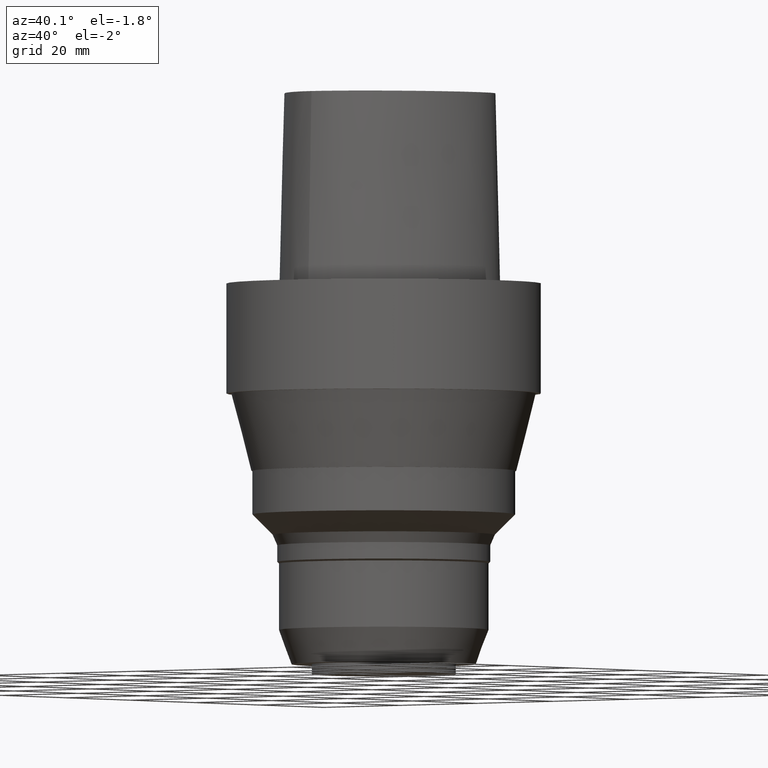
[diagram: clean part render]
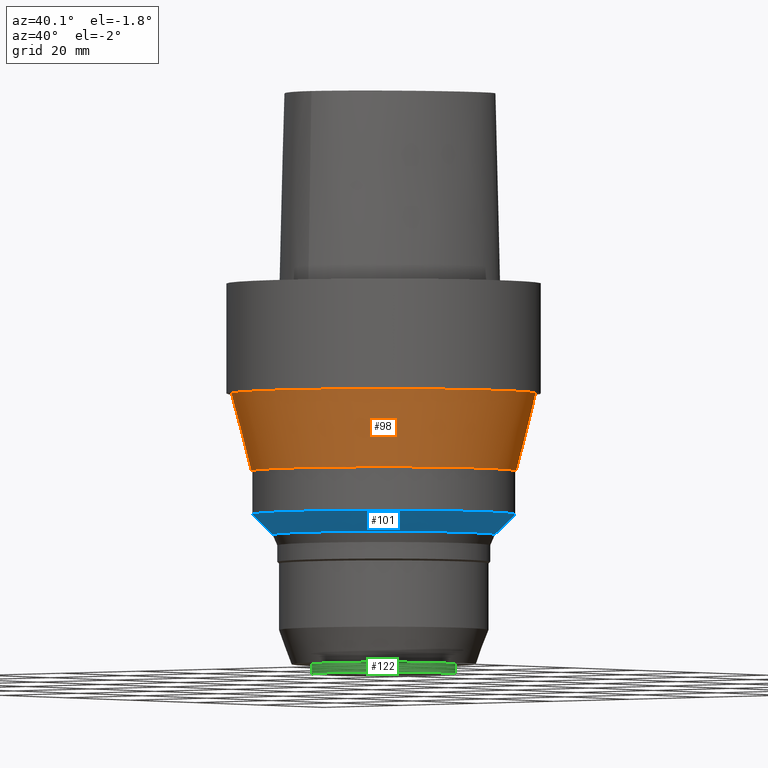
[diagram: same view with three faces highlighted in distinct colors, each labeled with its STEP entity id]
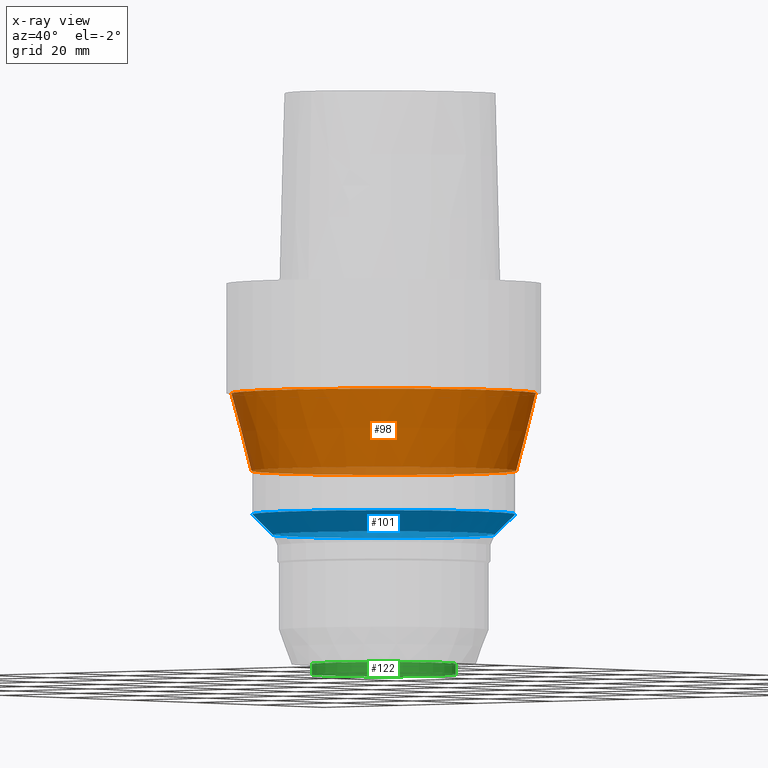
[diagram: x-ray of the same camera — body ghosted, the three highlighted faces saturated]
A machine part, auxiliary view with three faces highlighted in distinct colors.
The next image is the same camera in x-ray (body ghosted, the three faces saturated) — at least one of them is partly hidden behind the body in this view.
Their STEP definitions:

[orange] entity #98 — the highlighted conical surface has half-angle 14.47 deg.
#98=ADVANCED_FACE('Unnamed[1]',(#235,#236),#237,.T.);
#119=EDGE_CURVE('Unnamed[1]',#270,#270,#271,.T.);
#154=EDGE_CURVE('Unnamed[1]',#319,#319,#320,.T.);
#235=FACE_BOUND('',#514,.T.);
#236=FACE_BOUND('',#515,.T.);
#237=CONICAL_SURFACE('',#516,28.5000000000026,0.252554275777704);
#270=VERTEX_POINT('',#557);
#271=CIRCLE('',#558,30.4999999999999);
#319=VERTEX_POINT('',#704);
#320=CIRCLE('',#705,26.5000000000054);
#514=EDGE_LOOP('',(#795));
#515=EDGE_LOOP('',(#796));
#516=AXIS2_PLACEMENT_3D('',#797,#798,#799);
#557=CARTESIAN_POINT('',(1.34711147906212E-015,30.4999999999999,-22.0000000000006));
#558=AXIS2_PLACEMENT_3D('',#838,#839,#840);
#704=CARTESIAN_POINT('',(2.29621274840141E-015,26.5000000000054,-37.5000000000021));
#705=AXIS2_PLACEMENT_3D('',#890,#891,#892);
#795=ORIENTED_EDGE('',*,*,#154,.F.);
#796=ORIENTED_EDGE('',*,*,#119,.T.);
#797=CARTESIAN_POINT('',(1.82166211373177E-015,3.64332422746354E-015,-29.7500000000013));
#798=DIRECTION('',(-6.12323399573677E-017,-1.22464679914735E-016,1.0));
#799=DIRECTION('',(-1.23259516440783E-032,1.0,1.22464679914735E-016));
#838=CARTESIAN_POINT('',(1.34711147906212E-015,2.69422295812425E-015,-22.0000000000006));
#839=DIRECTION('',(6.12323399573677E-017,1.22464679914735E-016,-1.0));
#840=DIRECTION('',(-1.23259516440783E-032,1.0,1.22464679914735E-016));
#890=CARTESIAN_POINT('',(2.29621274840141E-015,4.59242549680283E-015,-37.5000000000021));
#891=DIRECTION('',(6.12323399573677E-017,1.22464679914735E-016,-1.0));
#892=DIRECTION('',(-1.23259516440783E-032,1.0,1.22464679914735E-016));

[blue] entity #101 — the highlighted conical surface has half-angle 45 deg.
#66=EDGE_CURVE('Unnamed[1]',#186,#186,#187,.T.);
#101=ADVANCED_FACE('Unnamed[1]',(#240,#241),#242,.T.);
#124=EDGE_CURVE('Unnamed[1]',#278,#278,#279,.T.);
#186=VERTEX_POINT('',#349);
#187=CIRCLE('',#350,22.2286796564404);
#240=FACE_BOUND('',#520,.T.);
#241=FACE_BOUND('',#521,.T.);
#242=CONICAL_SURFACE('',#522,24.2643398282202,0.785398163397472);
#278=VERTEX_POINT('',#567);
#279=CIRCLE('',#568,26.3);
#349=CARTESIAN_POINT('',(3.07823057738177E-015,22.2286796564404,-50.2713203435464));
#350=AXIS2_PLACEMENT_3D('',#749,#750,#751);
#520=EDGE_LOOP('',(#801));
#521=EDGE_LOOP('',(#802));
#522=AXIS2_PLACEMENT_3D('',#803,#804,#805);
#567=CARTESIAN_POINT('',(2.82893410602959E-015,26.3,-46.199999999987));
#568=AXIS2_PLACEMENT_3D('',#847,#848,#849);
#749=CARTESIAN_POINT('',(3.07823057738177E-015,6.15646115476354E-015,-50.2713203435464));
#750=DIRECTION('',(6.12323399573677E-017,1.22464679914735E-016,-1.0));
#751=DIRECTION('',(-1.23259516440783E-032,1.0,1.22464679914735E-016));
#801=ORIENTED_EDGE('',*,*,#66,.F.);
#802=ORIENTED_EDGE('',*,*,#124,.T.);
#803=CARTESIAN_POINT('',(2.95358234170568E-015,5.90716468341136E-015,-48.2356601717667));
#804=DIRECTION('',(-6.12323399573676E-017,-1.22464679914735E-016,1.0));
#805=DIRECTION('',(-1.23259516440783E-032,1.0,1.22464679914735E-016));
#847=CARTESIAN_POINT('',(2.82893410602959E-015,5.65786821205918E-015,-46.199999999987));
#848=DIRECTION('',(6.12323399573677E-017,1.22464679914735E-016,-1.0));
#849=DIRECTION('',(-1.23259516440783E-032,1.0,1.22464679914735E-016));

[green] entity #122 — the highlighted cylindrical surface (bore or boss wall) has radius 14.46 mm, axis along (0, 0, -1).
#122=ADVANCED_FACE('Unnamed[1]',(#274,#275),#276,.T.);
#137=EDGE_CURVE('Unnamed[1]',#297,#297,#298,.T.);
#160=EDGE_CURVE('Unnamed[1]',#327,#327,#328,.T.);
#274=FACE_BOUND('',#562,.T.);
#275=FACE_BOUND('',#563,.T.);
#276=CYLINDRICAL_SURFACE('',#564,14.4599999999988);
#297=VERTEX_POINT('',#658);
#298=CIRCLE('',#659,14.4599999999987);
#327=VERTEX_POINT('',#730);
#328=CIRCLE('',#731,14.459999999999);
#562=EDGE_LOOP('',(#842));
#563=EDGE_LOOP('',(#843));
#564=AXIS2_PLACEMENT_3D('',#844,#845,#846);
#658=CARTESIAN_POINT('',(4.66590430475083E-015,14.4599999999987,-76.1999999999904));
#659=AXIS2_PLACEMENT_3D('',#871,#872,#873);
#730=CARTESIAN_POINT('',(4.78836898466615E-015,14.459999999999,-78.2));
#731=AXIS2_PLACEMENT_3D('',#896,#897,#898);
#842=ORIENTED_EDGE('',*,*,#160,.F.);
#843=ORIENTED_EDGE('',*,*,#137,.T.);
#844=CARTESIAN_POINT('',(4.72713664470849E-015,9.45427328941698E-015,-77.1999999999952));
#845=DIRECTION('',(6.12323399573677E-017,1.22464679914735E-016,-1.0));
#846=DIRECTION('',(-1.23259516440783E-032,1.0,1.22464679914735E-016));
#871=CARTESIAN_POINT('',(4.66590430475083E-015,9.33180860950165E-015,-76.1999999999904));
#872=DIRECTION('',(6.12323399573677E-017,1.22464679914735E-016,-1.0));
#873=DIRECTION('',(-1.23259516440783E-032,1.0,1.22464679914735E-016));
#896=CARTESIAN_POINT('',(4.78836898466615E-015,9.5767379693323E-015,-78.2));
#897=DIRECTION('',(6.12323399573676E-017,1.22464679914735E-016,-1.0));
#898=DIRECTION('',(-1.23259516440783E-032,1.0,1.22464679914735E-016));